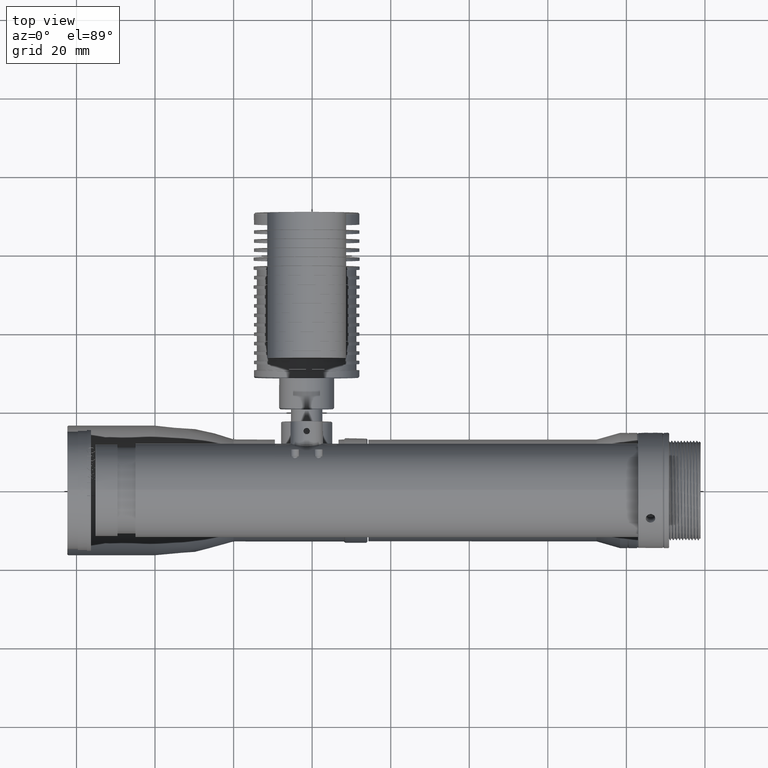
[diagram: clean part render]
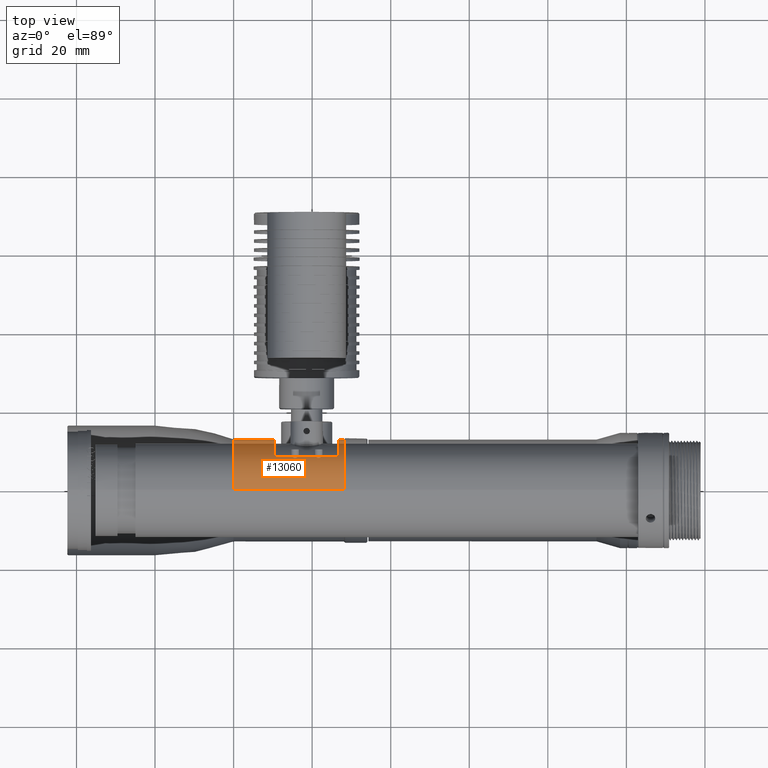
[diagram: same view with one face highlighted and labeled with its STEP entity id]
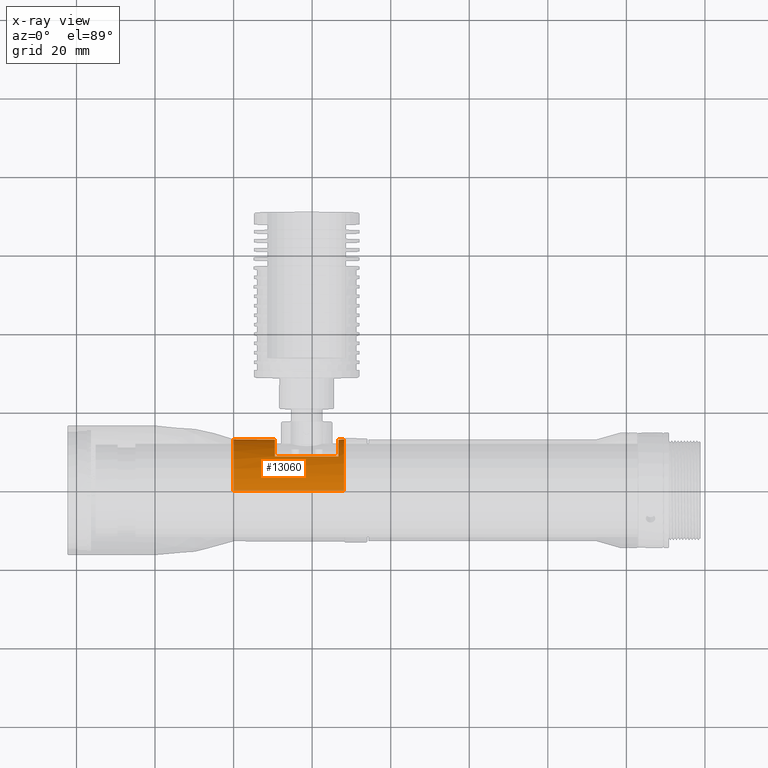
[diagram: x-ray of the same camera — body ghosted, the highlighted face saturated]
A machine part, top view. The second image highlights one B-rep face of the part: STEP entity #13060.
The next image is the same camera in x-ray: the body ghosted, the highlighted face saturated — about 4% of this face is hidden behind the body in this view.
In plain terms, the highlighted cylindrical surface (partial cylindrical patch) has radius 13 mm, axis along (1, 0, 0).
Its self-contained STEP definition (entity closure, byte-faithful):
#60 = CARTESIAN_POINT ( 'NONE',  ( 10.50000000000000000, 9.839362354371846919, 8.547289788752202355 ) ) ;
#71 = VERTEX_POINT ( 'NONE', #1690 ) ;
#1281 = DIRECTION ( 'NONE',  ( 1.000000000000000000, 0.000000000000000000, 0.000000000000000000 ) ) ;
#1690 = CARTESIAN_POINT ( 'NONE',  ( 3.356336042469099828E-11, 1.379713910231190061E-15, -13.00000000005491962 ) ) ;
#2392 = DIRECTION ( 'NONE',  ( 0.000000000000000000, 0.000000000000000000, 1.000000000000000000 ) ) ;
#2636 = EDGE_CURVE ( 'NONE', #71, #25000, #35706, .T. ) ;
#2758 = EDGE_LOOP ( 'NONE', ( #7304, #15241, #11470, #4515 ) ) ;
#2769 = CARTESIAN_POINT ( 'NONE',  ( -2.973806689624733520E-10, 12.99999999917635307, -5.845572394660550520E-05 ) ) ;
#3418 = CARTESIAN_POINT ( 'NONE',  ( 10.50000000000000178, 9.839314191771725504, -8.547485544919204870 ) ) ;
#3829 = CARTESIAN_POINT ( 'NONE',  ( 28.09999510234519704, 6.615982429762871320, 11.27516760052712108 ) ) ;
#4515 = ORIENTED_EDGE ( 'NONE', *, *, #6774, .F. ) ;
#4603 = CARTESIAN_POINT ( 'NONE',  ( 26.69999999999999929, 12.50341936557013867, 3.679099176310528296 ) ) ;
#5110 = CARTESIAN_POINT ( 'NONE',  ( 3.356336042469099828E-11, 1.379713910231190061E-15, -13.00000000005491962 ) ) ;
#5998 = EDGE_CURVE ( 'NONE', #18118, #41502, #37957, .T. ) ;
#6098 = CARTESIAN_POINT ( 'NONE',  ( 28.10000387800230470, 11.35922556461447641, -6.547042537090955960 ) ) ;
#6762 = CARTESIAN_POINT ( 'NONE',  ( 28.10000387800230826, 13.00000095234681652, -1.701689351571376685 ) ) ;
#6774 = EDGE_CURVE ( 'NONE', #19205, #29193, #14915, .T. ) ;
#7304 = ORIENTED_EDGE ( 'NONE', *, *, #37976, .F. ) ;
#7313 = ORIENTED_EDGE ( 'NONE', *, *, #2636, .F. ) ;
#8182 = CARTESIAN_POINT ( 'NONE',  ( 26.70000000020740316, 8.499999999817690721, 9.836157786457670582 ) ) ;
#8400 = CARTESIAN_POINT ( 'NONE',  ( 26.70000000000000284, 10.95906851830235595, 7.054670608972901213 ) ) ;
#8995 = CARTESIAN_POINT ( 'NONE',  ( 14.05000000000000071, 1.592040838891559884E-15, 13.00000000000000711 ) ) ;
#9469 = CARTESIAN_POINT ( 'NONE',  ( 28.10000387800230470, 3.402723708049224971, -12.66164455262226873 ) ) ;
#10538 = EDGE_CURVE ( 'NONE', #22838, #24176, #29335, .T. ) ;
#10604 = CARTESIAN_POINT ( 'NONE',  ( 10.50000000000000178, 12.50334224017262130, 3.679082371840259214 ) ) ;
#10819 = VERTEX_POINT ( 'NONE', #29343 ) ;
#11231 = CARTESIAN_POINT ( 'NONE',  ( 28.09999511696534924, 5.375928408413377824, 11.91637619742350651 ) ) ;
#11470 = ORIENTED_EDGE ( 'NONE', *, *, #32533, .F. ) ;
#11556 = CARTESIAN_POINT ( 'NONE',  ( 26.70000000000000284, 9.839314190884232758, 8.547485545937499651 ) ) ;
#11970 = CARTESIAN_POINT ( 'NONE',  ( -1.486894802612711901E-10, 12.99999999906250103, -0.0001169102669768365974 ) ) ;
#12965 = CARTESIAN_POINT ( 'NONE',  ( 15.89999999883459658, 8.500000000000000000, -9.836157784763491563 ) ) ;
#13060 = ADVANCED_FACE ( 'NONE', ( #13372, #30617 ), #27028, .F. ) ;
#13074 = CARTESIAN_POINT ( 'NONE',  ( 10.49999999999999645, 12.20972234571035742, 4.560038028482475525 ) ) ;
#13273 = CARTESIAN_POINT ( 'NONE',  ( 28.10000387800229760, 6.547048894242729844, -11.35922190058211534 ) ) ;
#13372 = FACE_BOUND ( 'NONE', #2758, .T. ) ;
#13738 = CARTESIAN_POINT ( 'NONE',  ( 10.50000000000000178, 9.206250406871630432, -9.225845448077029332 ) ) ;
#13958 = CARTESIAN_POINT ( 'NONE',  ( 26.70000000020740316, 8.500000000400810052, -9.836157785372629192 ) ) ;
#14729 = CARTESIAN_POINT ( 'NONE',  ( 14.05000000000000071, 7.703719777548943412E-31, -12.99999999999999289 ) ) ;
#14915 = B_SPLINE_CURVE_WITH_KNOTS ( 'NONE', 3,
 ( #15560, #42665, #29233, #25862, #22501, #36171, #32812, #15778, #39099, #18272, #18704, #4603, #29448, #28577, #8400, #11556, #38877, #8182 ),
 .UNSPECIFIED., .F., .F.,
 ( 4, 2, 2, 2, 2, 2, 2, 2, 4 ),
 ( 0.000000000000000000, 0.1250000000000000000, 0.2500000000000000000, 0.3750000000000000000, 0.5000000000000000000, 0.6250000000000000000, 0.7500000000000000000, 0.8750000000000000000, 1.000000000000000000 ),
 .UNSPECIFIED. ) ;
#15147 = CARTESIAN_POINT ( 'NONE',  ( 28.09999500000418138, 12.42622240589522953, 3.819555243386282939 ) ) ;
#15241 = ORIENTED_EDGE ( 'NONE', *, *, #39456, .F. ) ;
#15560 = CARTESIAN_POINT ( 'NONE',  ( 26.70000000020740316, 8.500000000400810052, -9.836157785372629192 ) ) ;
#15611 = CARTESIAN_POINT ( 'NONE',  ( 15.89999999883459658, 8.500000000000000000, 9.836157785925738750 ) ) ;
#15778 = CARTESIAN_POINT ( 'NONE',  ( 26.69999999999999929, 12.90062105002508197, -1.856136607069230671 ) ) ;
#15845 = CARTESIAN_POINT ( 'NONE',  ( 1.904705882969552737E-10, 12.99988309023627231, -13.00000000016480506 ) ) ;
#16198 = CARTESIAN_POINT ( 'NONE',  ( 2.657269811478749279E-10, 12.99999999917634952, 12.99999999818265195 ) ) ;
#16637 = CARTESIAN_POINT ( 'NONE',  ( 10.50000000000000000, 13.00003946749722417, -0.9328667771762036987 ) ) ;
#17092 = CARTESIAN_POINT ( 'NONE',  ( -1.486894802612711901E-10, 12.99999999906250103, -0.0001169102669768365974 ) ) ;
#17183 = ORIENTED_EDGE ( 'NONE', *, *, #10538, .T. ) ;
#17304 = CARTESIAN_POINT ( 'NONE',  ( 10.50000000000000000, 12.50341936598429626, -3.679099174910426484 ) ) ;
#17716 = CARTESIAN_POINT ( 'NONE',  ( 28.09999505848476176, 9.810914102465554620, 8.639825947607405965 ) ) ;
#18102 = VECTOR ( 'NONE', #19280, 1000.000000000000000 ) ;
#18118 = VERTEX_POINT ( 'NONE', #32778 ) ;
#18272 = CARTESIAN_POINT ( 'NONE',  ( 26.69999999999999929, 13.00003946739277616, 0.9328667786700534093 ) ) ;
#18472 = CARTESIAN_POINT ( 'NONE',  ( 28.10000387800235089, -3.021081983818604781E-16, -13.00000000000000000 ) ) ;
#18704 = CARTESIAN_POINT ( 'NONE',  ( 26.70000000000000284, 12.90054392448454479, 1.856119803780073685 ) ) ;
#18753 = B_SPLINE_CURVE_WITH_KNOTS ( 'NONE', 3,
 ( #26132, #33089, #15611, #39372 ),
 .UNSPECIFIED., .F., .F.,
 ( 4, 4 ),
 ( 0.000000000000000000, 1.000000000000000000 ),
 .UNSPECIFIED. ) ;
#19144 = EDGE_CURVE ( 'NONE', #25000, #28091, #37165, .T. ) ;
#19205 = VERTEX_POINT ( 'NONE', #13958 ) ;
#19280 = DIRECTION ( 'NONE',  ( 1.000000000000000000, 0.000000000000000000, 0.000000000000000000 ) ) ;
#20425 = CARTESIAN_POINT ( 'NONE',  ( 10.50000000000000178, 12.90054392470084466, -1.856119802286574805 ) ) ;
#20643 = CARTESIAN_POINT ( 'NONE',  ( 10.50000000000000000, 10.95906851904946144, -7.054670607812195016 ) ) ;
#20978 = VECTOR ( 'NONE', #1281, 1000.000000000000000 ) ;
#21060 = CARTESIAN_POINT ( 'NONE',  ( 28.09999507310491040, 8.833663698021592126, 9.636753270742337563 ) ) ;
#21221 = LINE ( 'NONE', #14729, #20978 ) ;
#21722 = CARTESIAN_POINT ( 'NONE',  ( 28.09999516082580229, 1.378632637900858660, 12.99999999925469751 ) ) ;
#21761 = LINE ( 'NONE', #8995, #18102 ) ;
#21853 = CARTESIAN_POINT ( 'NONE',  ( 28.09999940681110076, 13.00000011342658013, 7.275400200014970172E-06 ) ) ;
#22501 = CARTESIAN_POINT ( 'NONE',  ( 26.70000000000000284, 11.43345848953063459, -6.256615797835236137 ) ) ;
#22838 = VERTEX_POINT ( 'NONE', #18472 ) ;
#24159 = B_SPLINE_CURVE_WITH_KNOTS ( 'NONE', 3,
 ( #43639, #12965, #36245, #40507 ),
 .UNSPECIFIED., .F., .F.,
 ( 4, 4 ),
 ( 0.000000000000000000, 1.000000000000000000 ),
 .UNSPECIFIED. ) ;
#24176 = VERTEX_POINT ( 'NONE', #31800 ) ;
#25000 = VERTEX_POINT ( 'NONE', #11970 ) ;
#25651 = B_SPLINE_CURVE_WITH_KNOTS ( 'NONE', 3,
 ( #40840, #33677, #60, #37259, #43969, #13074, #10604, #37480, #43753, #16637, #20425, #17304, #40401, #37700, #20643, #3418, #13738, #33892 ),
 .UNSPECIFIED., .F., .F.,
 ( 4, 2, 2, 2, 2, 2, 2, 2, 4 ),
 ( 0.000000000000000000, 0.1250000000000001110, 0.2500000000000001110, 0.3750000000000001110, 0.5000000000000001110, 0.6250000000000001110, 0.7500000000000001110, 0.8750000000000001110, 1.000000000000000000 ),
 .UNSPECIFIED. ) ;
#25862 = CARTESIAN_POINT ( 'NONE',  ( 26.70000000000000284, 10.95902035538800412, -7.054866365187844934 ) ) ;
#26132 = CARTESIAN_POINT ( 'NONE',  ( 26.70000000020740316, 8.499999999817690721, 9.836157786457670582 ) ) ;
#26155 = ORIENTED_EDGE ( 'NONE', *, *, #32308, .T. ) ;
#26478 = CARTESIAN_POINT ( 'NONE',  ( 28.10000387800231181, 1.701696626978390636, -12.99999999999999112 ) ) ;
#27028 = CYLINDRICAL_SURFACE ( 'NONE', #32067, 13.00000000000000000 ) ;
#28091 = VERTEX_POINT ( 'NONE', #35737 ) ;
#28577 = CARTESIAN_POINT ( 'NONE',  ( 26.69999999999999929, 11.43353026852667043, 6.256648637982598515 ) ) ;
#28680 = CARTESIAN_POINT ( 'NONE',  ( 28.09999514620565009, 2.757031002654474428, 12.77886567662833528 ) ) ;
#29136 = ORIENTED_EDGE ( 'NONE', *, *, #19144, .F. ) ;
#29187 = EDGE_CURVE ( 'NONE', #28091, #41502, #21761, .T. ) ;
#29193 = VERTEX_POINT ( 'NONE', #35877 ) ;
#29233 = CARTESIAN_POINT ( 'NONE',  ( 26.70000000000000639, 9.839362355506763080, -8.547289787445505382 ) ) ;
#29335 = B_SPLINE_CURVE_WITH_KNOTS ( 'NONE', 3,
 ( #33661, #26478, #9469, #13273, #36793, #40821, #6098, #33435, #6762, #40602 ),
 .UNSPECIFIED., .F., .F.,
 ( 4, 2, 2, 2, 4 ),
 ( 0.000000000000000000, 0.2500000000000000555, 0.5000000000000000000, 0.7500000000000000000, 1.000000000000000000 ),
 .UNSPECIFIED. ) ;
#29343 = CARTESIAN_POINT ( 'NONE',  ( 10.49999999869135969, 8.500000000370381059, -9.836157785463530701 ) ) ;
#29448 = CARTESIAN_POINT ( 'NONE',  ( 26.70000000000000284, 12.20965056609970922, 4.560005189387402957 ) ) ;
#29520 = CARTESIAN_POINT ( 'NONE',  ( -1.486894802612711901E-10, 12.99999999906250103, -0.0001169102669768365974 ) ) ;
#29878 = CARTESIAN_POINT ( 'NONE',  ( 8.179323884860399496E-10, -1.247196782036648093E-10, 12.99999999853546129 ) ) ;
#30136 = VERTEX_POINT ( 'NONE', #41086 ) ;
#30617 = FACE_OUTER_BOUND ( 'NONE', #32875, .T. ) ;
#31800 = CARTESIAN_POINT ( 'NONE',  ( 28.09999940681110076, 13.00000011342658013, 7.275400200014970172E-06 ) ) ;
#32067 = AXIS2_PLACEMENT_3D ( 'NONE', #33093, #40701, #2392 ) ;
#32182 = CARTESIAN_POINT ( 'NONE',  ( 28.09999498630007508, 12.80590101040190554, 2.584339818879626272 ) ) ;
#32308 = EDGE_CURVE ( 'NONE', #71, #22838, #21221, .T. ) ;
#32533 = EDGE_CURVE ( 'NONE', #29193, #30136, #18753, .T. ) ;
#32778 = CARTESIAN_POINT ( 'NONE',  ( 28.09999500000418138, 12.42622240589522953, 3.819555243386282939 ) ) ;
#32812 = CARTESIAN_POINT ( 'NONE',  ( 26.70000000000000284, 12.50334224063561628, -3.679082370240030819 ) ) ;
#32875 = EDGE_LOOP ( 'NONE', ( #7313, #26155, #17183, #32885, #33448, #34314, #29136 ) ) ;
#32885 = ORIENTED_EDGE ( 'NONE', *, *, #39887, .T. ) ;
#33089 = CARTESIAN_POINT ( 'NONE',  ( 21.29999999959510149, 8.500000000000000000, 9.836157785925738750 ) ) ;
#33093 = CARTESIAN_POINT ( 'NONE',  ( 14.05000000000000071, 1.592040838891559884E-15, 6.661338147750940031E-15 ) ) ;
#33435 = CARTESIAN_POINT ( 'NONE',  ( 28.10000387800230470, 12.66164645694329671, -3.402716622001436875 ) ) ;
#33448 = ORIENTED_EDGE ( 'NONE', *, *, #5998, .T. ) ;
#33661 = CARTESIAN_POINT ( 'NONE',  ( 28.10000387800235089, -3.021081983818604781E-16, -13.00000000000000000 ) ) ;
#33677 = CARTESIAN_POINT ( 'NONE',  ( 10.50000000000000355, 9.205969758743540510, 9.226087972717953889 ) ) ;
#33892 = CARTESIAN_POINT ( 'NONE',  ( 10.49999999869135969, 8.500000000370381059, -9.836157785463530701 ) ) ;
#34314 = ORIENTED_EDGE ( 'NONE', *, *, #29187, .F. ) ;
#34523 = CARTESIAN_POINT ( 'NONE',  ( 28.09999501462431226, 12.02116347862708956, 5.137339442846830195 ) ) ;
#35538 = CARTESIAN_POINT ( 'NONE',  ( 28.09999497259599011, 12.99999927679388634, 1.292258407214944338 ) ) ;
#35706 =( BOUNDED_CURVE ( )  B_SPLINE_CURVE ( 2, ( #5110, #15845, #29520 ),
 .UNSPECIFIED., .F., .T. ) 
 B_SPLINE_CURVE_WITH_KNOTS ( ( 3, 3 ),
 ( 0.000000000000000000, 1.000000000000000000 ),
 .UNSPECIFIED. ) 
 CURVE ( )  GEOMETRIC_REPRESENTATION_ITEM ( )  RATIONAL_B_SPLINE_CURVE ( ( 1.000000000000000000, 0.7071086436957373378, 0.9999962750053088545 ) ) 
 REPRESENTATION_ITEM ( '' )  );
#35737 = CARTESIAN_POINT ( 'NONE',  ( 8.179323884860399496E-10, -1.247196782036648093E-10, 12.99999999853546129 ) ) ;
#35877 = CARTESIAN_POINT ( 'NONE',  ( 26.70000000020740316, 8.499999999817690721, 9.836157786457670582 ) ) ;
#36171 = CARTESIAN_POINT ( 'NONE',  ( 26.69999999999999929, 12.20972234627999242, -4.560038026946181766 ) ) ;
#36245 = CARTESIAN_POINT ( 'NONE',  ( 21.29999999959510149, 8.500000000000000000, -9.836157784763491563 ) ) ;
#36793 = CARTESIAN_POINT ( 'NONE',  ( 28.10000387800230470, 7.989109839917017730, -10.39566714434482719 ) ) ;
#37165 =( BOUNDED_CURVE ( )  B_SPLINE_CURVE ( 2, ( #17092, #2769, #43305, #16198, #29878 ),
 .UNSPECIFIED., .F., .T. ) 
 B_SPLINE_CURVE_WITH_KNOTS ( ( 3, 2, 3 ),
 ( 0.000000000000000000, 6.358963697599553998E-06, 1.000000000000000000 ),
 .UNSPECIFIED. ) 
 CURVE ( )  GEOMETRIC_REPRESENTATION_ITEM ( )  RATIONAL_B_SPLINE_CURVE ( ( 0.9999962750036611725, 0.9999981374891631081, 0.9999999999983524290, 0.7071067811853831708, 0.9999999999983524290 ) ) 
 REPRESENTATION_ITEM ( '' )  );
#37259 = CARTESIAN_POINT ( 'NONE',  ( 10.49999999999999645, 10.95902035446080092, 7.054866366630001551 ) ) ;
#37480 = CARTESIAN_POINT ( 'NONE',  ( 10.49999999999999645, 12.90062104980703417, 1.856136608594579851 ) ) ;
#37700 = CARTESIAN_POINT ( 'NONE',  ( 10.50000000000000000, 11.43353026920093995, -6.256648636750796300 ) ) ;
#37957 = B_SPLINE_CURVE_WITH_KNOTS ( 'NONE', 3,
 ( #38985, #34523, #41466, #17716, #21060, #3829, #11231, #28680, #21722, #38327 ),
 .UNSPECIFIED., .F., .F.,
 ( 4, 2, 2, 2, 4 ),
 ( 0.09492379785694884942, 0.1961928483927117273, 0.2974618989284745219, 0.3987309494642372609, 0.5000000000000000000 ),
 .UNSPECIFIED. ) ;
#37976 = EDGE_CURVE ( 'NONE', #10819, #19205, #24159, .T. ) ;
#38327 = CARTESIAN_POINT ( 'NONE',  ( 28.09999517544595804, 1.408784598356160155E-15, 13.00000030072293811 ) ) ;
#38877 = CARTESIAN_POINT ( 'NONE',  ( 26.70000000000000995, 9.206250405928049219, 9.225845449016064848 ) ) ;
#38985 = CARTESIAN_POINT ( 'NONE',  ( 28.09999500000418138, 12.42622240589522953, 3.819555243386282939 ) ) ;
#39099 = CARTESIAN_POINT ( 'NONE',  ( 26.70000000000000284, 12.99996053260722384, -0.9328667772467720276 ) ) ;
#39372 = CARTESIAN_POINT ( 'NONE',  ( 10.49999999869135969, 8.499999999728339972, 9.836157786550209892 ) ) ;
#39456 = EDGE_CURVE ( 'NONE', #30136, #10819, #25651, .T. ) ;
#39553 = B_SPLINE_CURVE_WITH_KNOTS ( 'NONE', 3,
 ( #21853, #35538, #32182, #15147 ),
 .UNSPECIFIED., .F., .F.,
 ( 4, 4 ),
 ( 0.000000000000000000, 0.09492379785694884942 ),
 .UNSPECIFIED. ) ;
#39887 = EDGE_CURVE ( 'NONE', #24176, #18118, #39553, .T. ) ;
#40401 = CARTESIAN_POINT ( 'NONE',  ( 10.50000000000000178, 12.20965056660806525, -4.560005188034125467 ) ) ;
#40461 = CARTESIAN_POINT ( 'NONE',  ( 28.09999517544595804, 1.408784598356160155E-15, 13.00000030072293811 ) ) ;
#40507 = CARTESIAN_POINT ( 'NONE',  ( 26.70000000020740316, 8.500000000400810052, -9.836157785372629192 ) ) ;
#40602 = CARTESIAN_POINT ( 'NONE',  ( 28.09999940681110076, 13.00000011342658013, 7.275400200014970172E-06 ) ) ;
#40701 = DIRECTION ( 'NONE',  ( 1.000000000000000000, 0.000000000000000000, 0.000000000000000000 ) ) ;
#40821 = CARTESIAN_POINT ( 'NONE',  ( 28.10000387800230826, 10.39567161542194107, -7.989104022015242279 ) ) ;
#40840 = CARTESIAN_POINT ( 'NONE',  ( 10.49999999869135969, 8.499999999728339972, 9.836157786550209892 ) ) ;
#41086 = CARTESIAN_POINT ( 'NONE',  ( 10.49999999869135969, 8.499999999728339972, 9.836157786550209892 ) ) ;
#41466 = CARTESIAN_POINT ( 'NONE',  ( 28.09999502924446801, 11.40479941431847166, 6.389927875185181350 ) ) ;
#41502 = VERTEX_POINT ( 'NONE', #40461 ) ;
#42665 = CARTESIAN_POINT ( 'NONE',  ( 26.70000000000000284, 9.205969759991456058, -9.226087971470930071 ) ) ;
#43305 = CARTESIAN_POINT ( 'NONE',  ( -2.973781369584404447E-10, 12.99999999917635307, -1.180793274455646938E-09 ) ) ;
#43639 = CARTESIAN_POINT ( 'NONE',  ( 10.49999999869135969, 8.500000000370381059, -9.836157785463530701 ) ) ;
#43753 = CARTESIAN_POINT ( 'NONE',  ( 10.50000000000000178, 12.99996053250277761, 0.9328667788331039823 ) ) ;
#43969 = CARTESIAN_POINT ( 'NONE',  ( 10.50000000000000000, 11.43345848872002435, 6.256615799315823345 ) ) ;